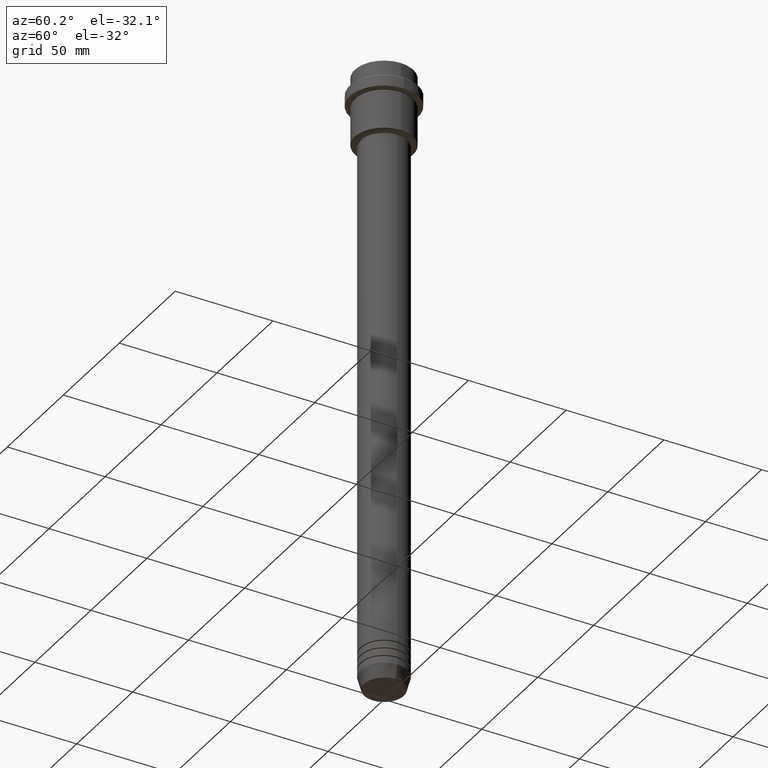
[diagram: clean part render]
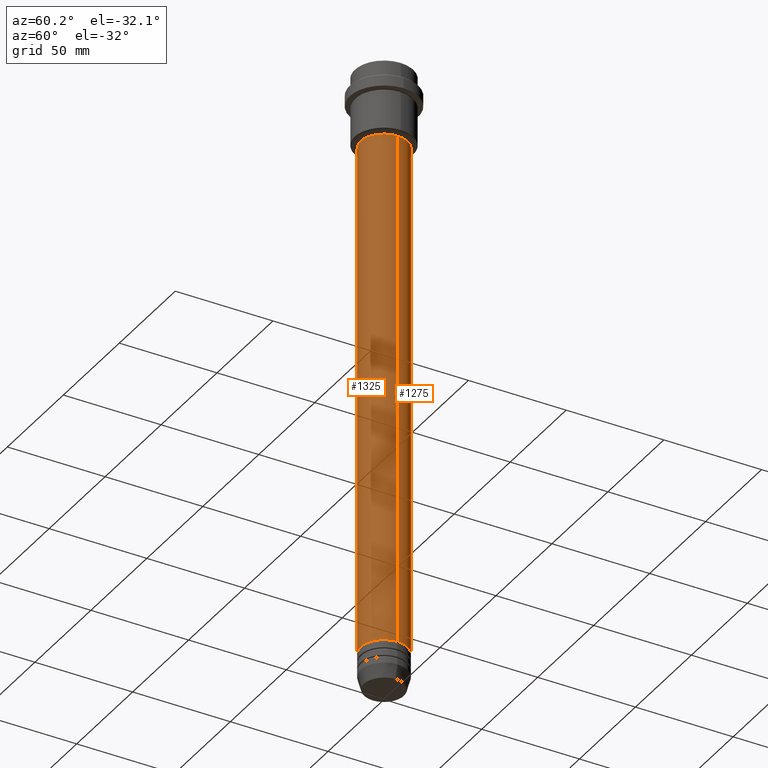
[diagram: same view with one multi-face feature highlighted, each face labeled with its STEP entity id]
A machine part, auxiliary view. The highlighted faces form ONE feature: a constant-radius fillet chain: 2 tangent blend faces with common blend radius 12 mm. The faces share edges in the B-rep.
Their STEP definitions:
[1] entity #1325 (Cylinder):
#12 = EDGE_CURVE ( 'NONE', #971, #157, #1062, .T. ) ;
#58 = CARTESIAN_POINT ( 'NONE',  ( -11.99999999999999822, 1.469576158976823750E-15, -37.00000000000000711 ) ) ;
#88 = DIRECTION ( 'NONE',  ( -0.000000000000000000, -0.000000000000000000, 1.000000000000000000 ) ) ;
#101 = CIRCLE ( 'NONE', #1151, 11.99999999999999822 ) ;
#112 = CARTESIAN_POINT ( 'NONE',  ( 12.00000000000000000, 0.000000000000000000, -301.9999999999998863 ) ) ;
#157 = VERTEX_POINT ( 'NONE', #112 ) ;
#184 = DIRECTION ( 'NONE',  ( 1.000000000000000000, 0.000000000000000000, 0.000000000000000000 ) ) ;
#352 = DIRECTION ( 'NONE',  ( 1.000000000000000000, 0.000000000000000000, 0.000000000000000000 ) ) ;
#385 = EDGE_LOOP ( 'NONE', ( #733, #885, #1242, #1336 ) ) ;
#407 = FACE_OUTER_BOUND ( 'NONE', #385, .T. ) ;
#430 = CARTESIAN_POINT ( 'NONE',  ( -12.00000000000000000, 1.469576158976823947E-15, -301.9999999999998863 ) ) ;
#519 = CARTESIAN_POINT ( 'NONE',  ( 0.000000000000000000, 0.000000000000000000, 0.000000000000000000 ) ) ;
#538 = AXIS2_PLACEMENT_3D ( 'NONE', #615, #628, #1077 ) ;
#580 = VERTEX_POINT ( 'NONE', #1340 ) ;
#602 = LINE ( 'NONE', #938, #627 ) ;
#604 = EDGE_CURVE ( 'NONE', #796, #580, #101, .T. ) ;
#615 = CARTESIAN_POINT ( 'NONE',  ( 0.000000000000000000, 0.000000000000000000, -301.9999999999998863 ) ) ;
#627 = VECTOR ( 'NONE', #1256, 1000.000000000000000 ) ;
#628 = DIRECTION ( 'NONE',  ( -0.000000000000000000, -0.000000000000000000, 1.000000000000000000 ) ) ;
#704 = CARTESIAN_POINT ( 'NONE',  ( -12.00000000000000000, 1.469576158976823947E-15, 0.000000000000000000 ) ) ;
#733 = ORIENTED_EDGE ( 'NONE', *, *, #772, .F. ) ;
#772 = EDGE_CURVE ( 'NONE', #971, #796, #798, .T. ) ;
#785 = CARTESIAN_POINT ( 'NONE',  ( 0.000000000000000000, 0.000000000000000000, -37.00000000000000711 ) ) ;
#796 = VERTEX_POINT ( 'NONE', #58 ) ;
#798 = LINE ( 'NONE', #704, #1289 ) ;
#819 = EDGE_CURVE ( 'NONE', #157, #580, #602, .T. ) ;
#885 = ORIENTED_EDGE ( 'NONE', *, *, #12, .T. ) ;
#938 = CARTESIAN_POINT ( 'NONE',  ( 12.00000000000000000, 0.000000000000000000, 0.000000000000000000 ) ) ;
#971 = VERTEX_POINT ( 'NONE', #430 ) ;
#1062 = CIRCLE ( 'NONE', #538, 12.00000000000000000 ) ;
#1077 = DIRECTION ( 'NONE',  ( 1.000000000000000000, 0.000000000000000000, 0.000000000000000000 ) ) ;
#1130 = AXIS2_PLACEMENT_3D ( 'NONE', #519, #88, #184 ) ;
#1138 = DIRECTION ( 'NONE',  ( -0.000000000000000000, -0.000000000000000000, 1.000000000000000000 ) ) ;
#1151 = AXIS2_PLACEMENT_3D ( 'NONE', #785, #1323, #352 ) ;
#1242 = ORIENTED_EDGE ( 'NONE', *, *, #819, .T. ) ;
#1256 = DIRECTION ( 'NONE',  ( -0.000000000000000000, -0.000000000000000000, 1.000000000000000000 ) ) ;
#1289 = VECTOR ( 'NONE', #1138, 1000.000000000000000 ) ;
#1323 = DIRECTION ( 'NONE',  ( -0.000000000000000000, -0.000000000000000000, 1.000000000000000000 ) ) ;
#1325 = ADVANCED_FACE ( 'NONE', ( #407 ), #1379, .T. ) ;
#1336 = ORIENTED_EDGE ( 'NONE', *, *, #604, .F. ) ;
#1340 = CARTESIAN_POINT ( 'NONE',  ( 11.99999999999999822, 0.000000000000000000, -37.00000000000000711 ) ) ;
#1379 = CYLINDRICAL_SURFACE ( 'NONE', #1130, 12.00000000000000000 ) ;
[2] entity #1275 (Cylinder):
#5 = EDGE_LOOP ( 'NONE', ( #893, #509, #1042, #1304 ) ) ;
#58 = CARTESIAN_POINT ( 'NONE',  ( -11.99999999999999822, 1.469576158976823750E-15, -37.00000000000000711 ) ) ;
#112 = CARTESIAN_POINT ( 'NONE',  ( 12.00000000000000000, 0.000000000000000000, -301.9999999999998863 ) ) ;
#128 = DIRECTION ( 'NONE',  ( -0.000000000000000000, -0.000000000000000000, 1.000000000000000000 ) ) ;
#138 = FACE_OUTER_BOUND ( 'NONE', #5, .T. ) ;
#157 = VERTEX_POINT ( 'NONE', #112 ) ;
#329 = DIRECTION ( 'NONE',  ( 1.000000000000000000, 0.000000000000000000, 0.000000000000000000 ) ) ;
#344 = CARTESIAN_POINT ( 'NONE',  ( 0.000000000000000000, 0.000000000000000000, -301.9999999999998863 ) ) ;
#408 = AXIS2_PLACEMENT_3D ( 'NONE', #908, #1342, #844 ) ;
#430 = CARTESIAN_POINT ( 'NONE',  ( -12.00000000000000000, 1.469576158976823947E-15, -301.9999999999998863 ) ) ;
#442 = EDGE_CURVE ( 'NONE', #580, #796, #1108, .T. ) ;
#509 = ORIENTED_EDGE ( 'NONE', *, *, #772, .T. ) ;
#580 = VERTEX_POINT ( 'NONE', #1340 ) ;
#602 = LINE ( 'NONE', #938, #627 ) ;
#627 = VECTOR ( 'NONE', #1256, 1000.000000000000000 ) ;
#653 = AXIS2_PLACEMENT_3D ( 'NONE', #344, #128, #1328 ) ;
#704 = CARTESIAN_POINT ( 'NONE',  ( -12.00000000000000000, 1.469576158976823947E-15, 0.000000000000000000 ) ) ;
#745 = DIRECTION ( 'NONE',  ( -0.000000000000000000, -0.000000000000000000, 1.000000000000000000 ) ) ;
#772 = EDGE_CURVE ( 'NONE', #971, #796, #798, .T. ) ;
#796 = VERTEX_POINT ( 'NONE', #58 ) ;
#798 = LINE ( 'NONE', #704, #1289 ) ;
#819 = EDGE_CURVE ( 'NONE', #157, #580, #602, .T. ) ;
#844 = DIRECTION ( 'NONE',  ( 1.000000000000000000, 0.000000000000000000, 0.000000000000000000 ) ) ;
#893 = ORIENTED_EDGE ( 'NONE', *, *, #1032, .T. ) ;
#908 = CARTESIAN_POINT ( 'NONE',  ( 0.000000000000000000, 0.000000000000000000, 0.000000000000000000 ) ) ;
#938 = CARTESIAN_POINT ( 'NONE',  ( 12.00000000000000000, 0.000000000000000000, 0.000000000000000000 ) ) ;
#971 = VERTEX_POINT ( 'NONE', #430 ) ;
#1018 = AXIS2_PLACEMENT_3D ( 'NONE', #1080, #745, #329 ) ;
#1019 = CYLINDRICAL_SURFACE ( 'NONE', #408, 12.00000000000000000 ) ;
#1032 = EDGE_CURVE ( 'NONE', #157, #971, #1265, .T. ) ;
#1042 = ORIENTED_EDGE ( 'NONE', *, *, #442, .F. ) ;
#1080 = CARTESIAN_POINT ( 'NONE',  ( 0.000000000000000000, 0.000000000000000000, -37.00000000000000711 ) ) ;
#1108 = CIRCLE ( 'NONE', #1018, 11.99999999999999822 ) ;
#1138 = DIRECTION ( 'NONE',  ( -0.000000000000000000, -0.000000000000000000, 1.000000000000000000 ) ) ;
#1256 = DIRECTION ( 'NONE',  ( -0.000000000000000000, -0.000000000000000000, 1.000000000000000000 ) ) ;
#1265 = CIRCLE ( 'NONE', #653, 12.00000000000000000 ) ;
#1275 = ADVANCED_FACE ( 'NONE', ( #138 ), #1019, .T. ) ;
#1289 = VECTOR ( 'NONE', #1138, 1000.000000000000000 ) ;
#1304 = ORIENTED_EDGE ( 'NONE', *, *, #819, .F. ) ;
#1328 = DIRECTION ( 'NONE',  ( 1.000000000000000000, 0.000000000000000000, 0.000000000000000000 ) ) ;
#1340 = CARTESIAN_POINT ( 'NONE',  ( 11.99999999999999822, 0.000000000000000000, -37.00000000000000711 ) ) ;
#1342 = DIRECTION ( 'NONE',  ( -0.000000000000000000, -0.000000000000000000, 1.000000000000000000 ) ) ;